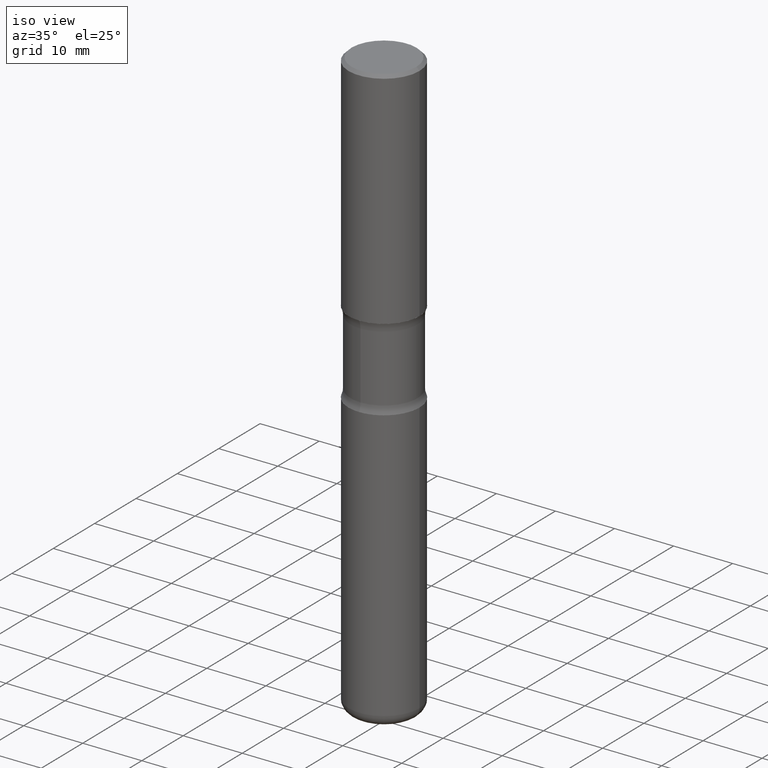
[diagram: clean part render]
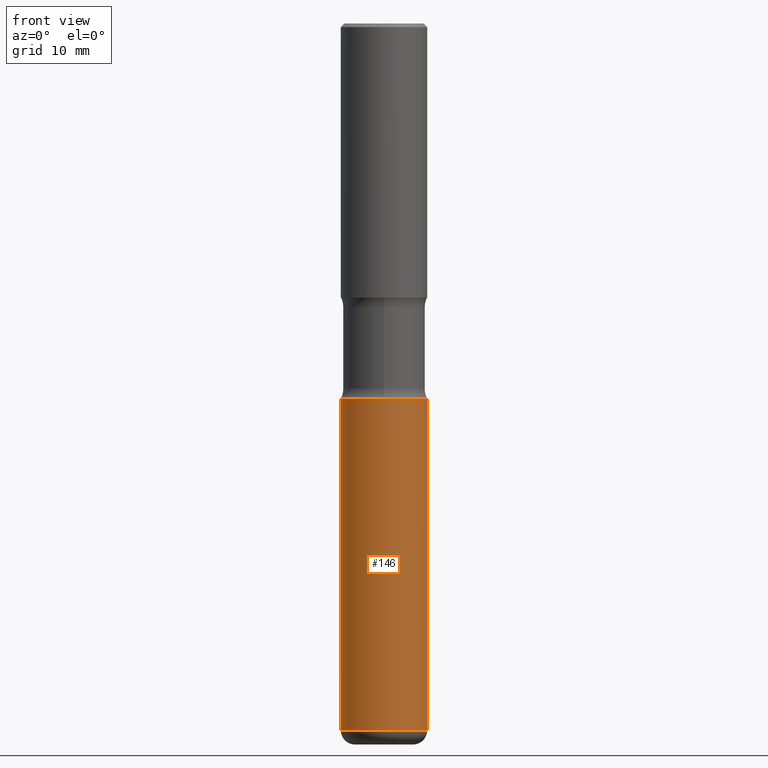
[diagram: tour spotlight — one face highlighted and labeled with its STEP entity id]
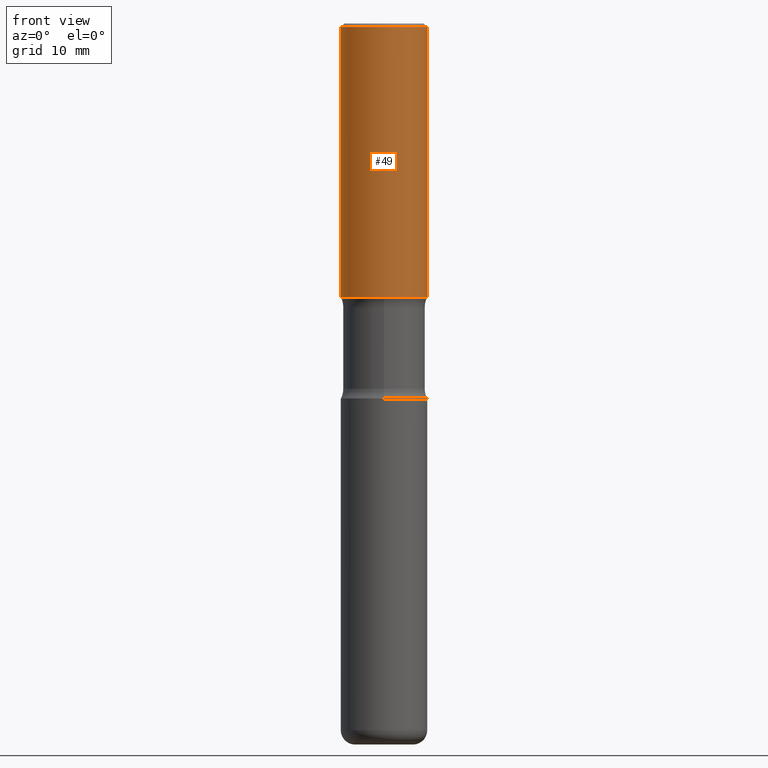
[diagram: tour spotlight — one face highlighted and labeled with its STEP entity id]
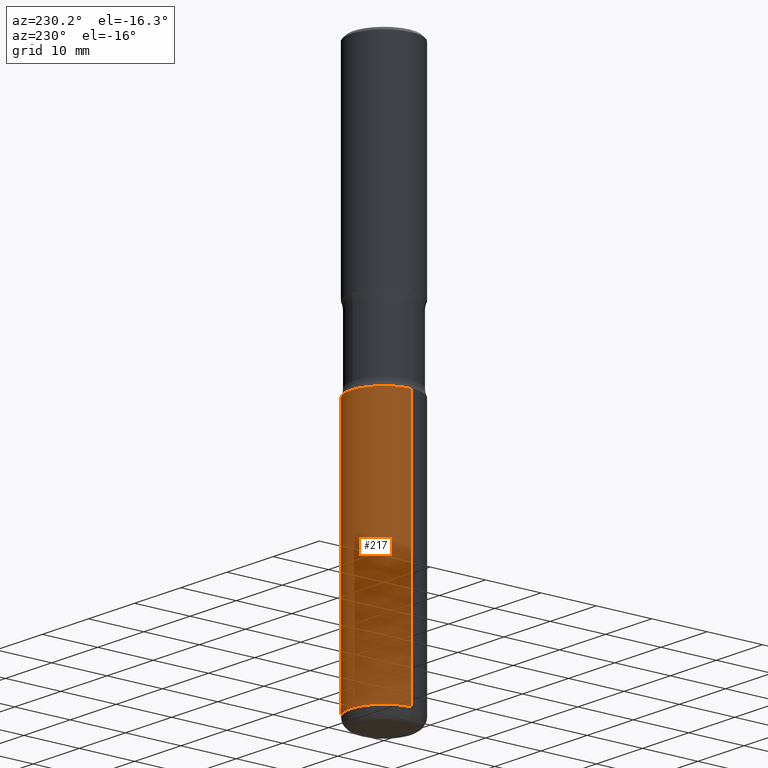
[diagram: tour spotlight — one face highlighted and labeled with its STEP entity id]
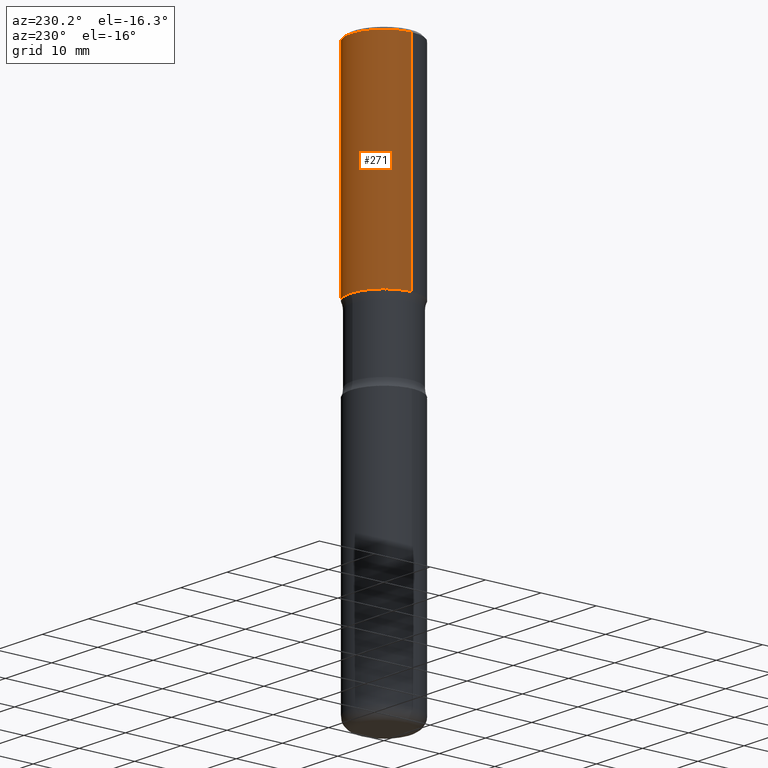
[diagram: tour spotlight — one face highlighted and labeled with its STEP entity id]
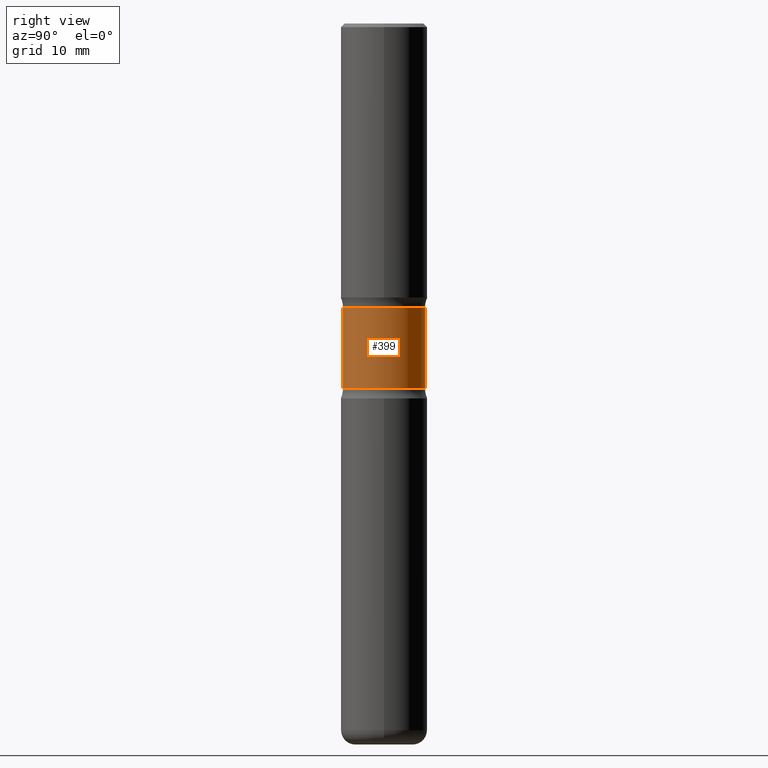
[diagram: tour spotlight — one face highlighted and labeled with its STEP entity id]
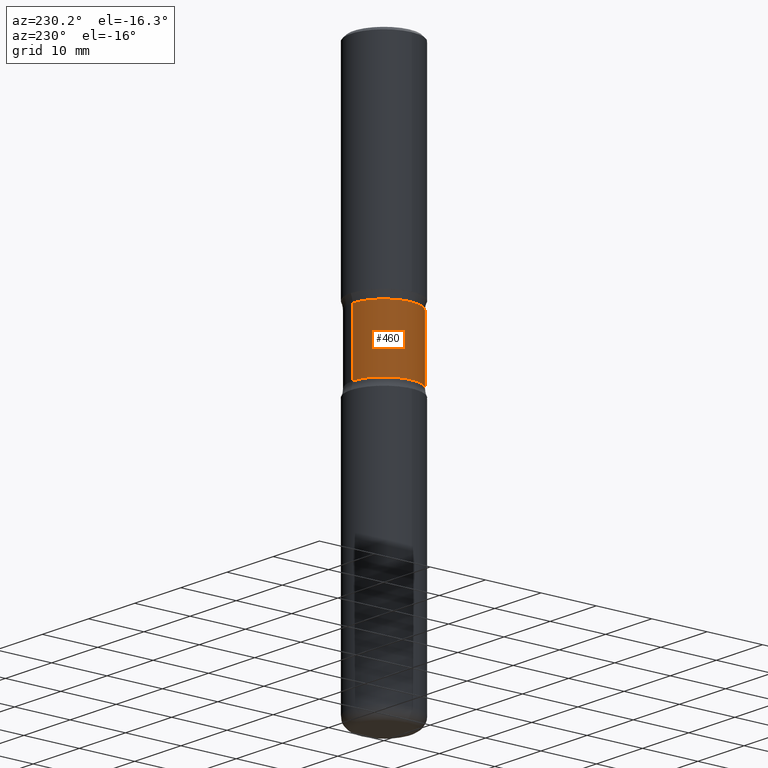
[diagram: tour spotlight — one face highlighted and labeled with its STEP entity id]
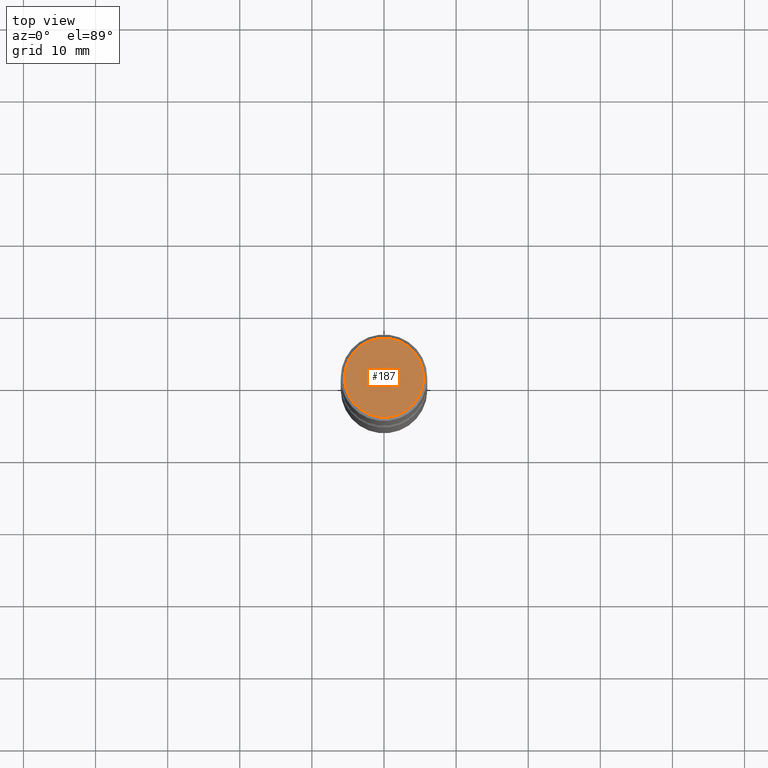
[diagram: tour spotlight — one face highlighted and labeled with its STEP entity id]
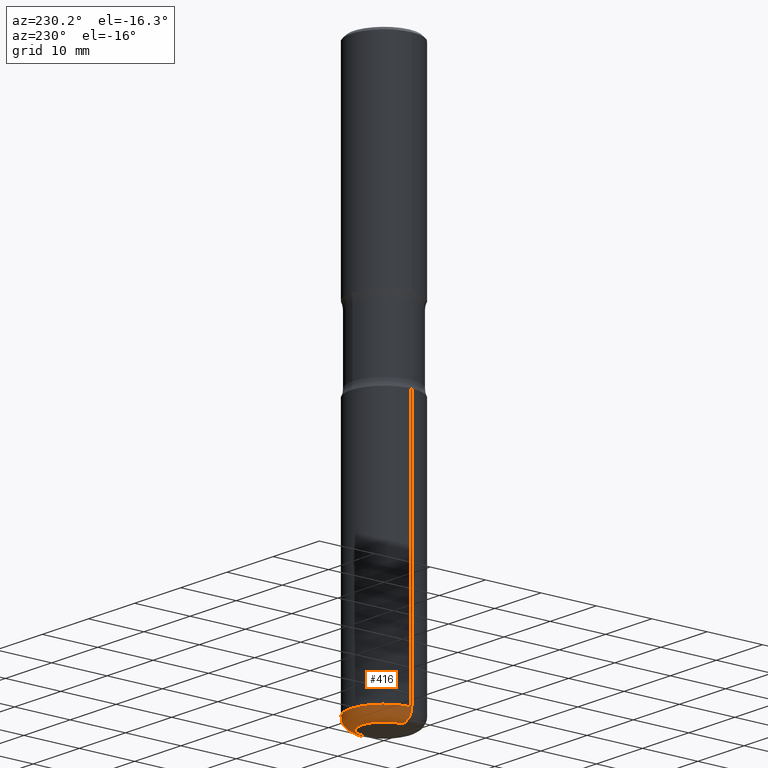
[diagram: tour spotlight — one face highlighted and labeled with its STEP entity id]
A machine part: a face-by-face anatomy tour. The part has 20 B-rep faces; the first image is the clean iso view, then the 8 largest visible faces are spotlighted one at a time (largest first), each with its STEP entity span.

Face 1 — front view, entity #146. In plain terms, the highlighted cylindrical surface (partial cylindrical patch) has radius 5.9995 mm, axis along (-0, 0, 1).
Definition (entity closure, byte-faithful):
#27 = ORIENTED_EDGE ( 'NONE', *, *, #535, .T. ) ;
#38 = CARTESIAN_POINT ( 'NONE',  ( 0.2361999999999999378, -1.512055823412800660E-14, -3.858300000000000729 ) ) ;
#39 = LINE ( 'NONE', #375, #124 ) ;
#40 = AXIS2_PLACEMENT_3D ( 'NONE', #239, #117, #532 ) ;
#42 = CARTESIAN_POINT ( 'NONE',  ( 0.2362000000000002153, -8.797136381349187883E-15, -2.047200000000000575 ) ) ;
#43 = DIRECTION ( 'NONE',  ( -2.445468806185136597E-29, 3.491481338843145583E-15, 1.000000000000000000 ) ) ;
#54 = ORIENTED_EDGE ( 'NONE', *, *, #137, .T. ) ;
#67 = VERTEX_POINT ( 'NONE', #419 ) ;
#74 = CARTESIAN_POINT ( 'NONE',  ( 5.006363740022213922E-29, -7.147760596879691357E-15, -2.047200000000000575 ) ) ;
#117 = DIRECTION ( 'NONE',  ( -2.445468806185136597E-29, 3.491481338843145583E-15, 1.000000000000000000 ) ) ;
#119 = DIRECTION ( 'NONE',  ( -2.445468806185136877E-29, 3.491481338843145188E-15, 1.000000000000000000 ) ) ;
#124 = VECTOR ( 'NONE', #119, 39.37007874015748143 ) ;
#137 = EDGE_CURVE ( 'NONE', #193, #234, #39, .T. ) ;
#142 = VECTOR ( 'NONE', #383, 39.37007874015748143 ) ;
#146 = ADVANCED_FACE ( 'NONE', ( #552 ), #505, .T. ) ;
#159 = VERTEX_POINT ( 'NONE', #418 ) ;
#167 = EDGE_CURVE ( 'NONE', #159, #234, #349, .T. ) ;
#193 = VERTEX_POINT ( 'NONE', #38 ) ;
#216 = DIRECTION ( 'NONE',  ( 1.000000000000000000, -6.982962677686266711E-15, 0.000000000000000000 ) ) ;
#234 = VERTEX_POINT ( 'NONE', #42 ) ;
#239 = CARTESIAN_POINT ( 'NONE',  ( 9.435352294904113263E-29, -1.347118244965851008E-14, -3.858300000000000729 ) ) ;
#257 = DIRECTION ( 'NONE',  ( -2.445468806185136597E-29, 3.491481338843145583E-15, 1.000000000000000000 ) ) ;
#281 = ORIENTED_EDGE ( 'NONE', *, *, #167, .F. ) ;
#302 = AXIS2_PLACEMENT_3D ( 'NONE', #74, #43, #216 ) ;
#349 = CIRCLE ( 'NONE', #302, 0.2362000000000002153 ) ;
#375 = CARTESIAN_POINT ( 'NONE',  ( 0.2362000000000001321, -1.649375784469497117E-15, 1.151752954443000789E-29 ) ) ;
#380 = EDGE_CURVE ( 'NONE', #67, #159, #429, .T. ) ;
#383 = DIRECTION ( 'NONE',  ( -2.445468806185136877E-29, 3.491481338843145188E-15, 1.000000000000000000 ) ) ;
#389 = CIRCLE ( 'NONE', #40, 0.2362000000000000210 ) ;
#414 = DIRECTION ( 'NONE',  ( 1.000000000000000000, -6.982962677686266711E-15, 4.876176775795936353E-29 ) ) ;
#418 = CARTESIAN_POINT ( 'NONE',  ( -0.2362000000000002153, -8.631169581403742744E-15, -2.047200000000000575 ) ) ;
#419 = CARTESIAN_POINT ( 'NONE',  ( -0.2361999999999999378, -1.179288050779315526E-14, -3.858300000000000729 ) ) ;
#424 = AXIS2_PLACEMENT_3D ( 'NONE', #465, #257, #414 ) ;
#425 = ORIENTED_EDGE ( 'NONE', *, *, #380, .F. ) ;
#429 = LINE ( 'NONE', #437, #142 ) ;
#437 = CARTESIAN_POINT ( 'NONE',  ( -0.2362000000000001321, 1.678301941865357577E-15, -1.161852468318209457E-29 ) ) ;
#449 = EDGE_LOOP ( 'NONE', ( #425, #27, #54, #281 ) ) ;
#465 = CARTESIAN_POINT ( 'NONE',  ( 0.000000000000000000, 0.000000000000000000, 0.000000000000000000 ) ) ;
#505 = CYLINDRICAL_SURFACE ( 'NONE', #424, 0.2362000000000001321 ) ;
#532 = DIRECTION ( 'NONE',  ( 1.000000000000000000, -6.982962677686264344E-15, 0.000000000000000000 ) ) ;
#535 = EDGE_CURVE ( 'NONE', #67, #193, #389, .T. ) ;
#552 = FACE_OUTER_BOUND ( 'NONE', #449, .T. ) ;

Face 2 — front view, entity #49. In plain terms, the highlighted cylindrical surface (partial cylindrical patch) has radius 5.9995 mm, axis along (-0, 0, 1).
Definition (entity closure, byte-faithful):
#5 = CARTESIAN_POINT ( 'NONE',  ( -0.2362000000000004374, -9.684154870446855490E-16, -1.496100000000000430 ) ) ;
#15 = ORIENTED_EDGE ( 'NONE', *, *, #469, .F. ) ;
#44 = EDGE_CURVE ( 'NONE', #313, #430, #231, .T. ) ;
#49 = ADVANCED_FACE ( 'NONE', ( #371 ), #210, .T. ) ;
#65 = CARTESIAN_POINT ( 'NONE',  ( 4.890937612370289799E-31, -6.982962677686315028E-17, -0.02000000000000006981 ) ) ;
#66 = CARTESIAN_POINT ( 'NONE',  ( 0.2362000000000000210, -1.690279253850499166E-15, -0.02000000000000006981 ) ) ;
#87 = DIRECTION ( 'NONE',  ( 1.000000000000000000, -6.982962677686266711E-15, 4.876176775795935793E-29 ) ) ;
#91 = CARTESIAN_POINT ( 'NONE',  ( 0.2362000000000002431, -1.649375784469497906E-15, 1.151752954443001209E-29 ) ) ;
#103 = ORIENTED_EDGE ( 'NONE', *, *, #44, .T. ) ;
#116 = DIRECTION ( 'NONE',  ( -2.445468806185136877E-29, 3.491481338843145188E-15, 1.000000000000000000 ) ) ;
#133 = LINE ( 'NONE', #91, #388 ) ;
#150 = AXIS2_PLACEMENT_3D ( 'NONE', #65, #241, #403 ) ;
#155 = EDGE_CURVE ( 'NONE', #430, #180, #133, .T. ) ;
#180 = VERTEX_POINT ( 'NONE', #66 ) ;
#188 = VERTEX_POINT ( 'NONE', #258 ) ;
#208 = DIRECTION ( 'NONE',  ( 1.000000000000000000, -6.982962677686267499E-15, 0.000000000000000000 ) ) ;
#210 = CYLINDRICAL_SURFACE ( 'NONE', #537, 0.2362000000000002431 ) ;
#231 = CIRCLE ( 'NONE', #401, 0.2362000000000004374 ) ;
#241 = DIRECTION ( 'NONE',  ( -2.445468806185136597E-29, 3.491481338843145583E-15, 1.000000000000000000 ) ) ;
#258 = CARTESIAN_POINT ( 'NONE',  ( -0.2362000000000000210, 1.579546157692633424E-15, -0.02000000000000006981 ) ) ;
#272 = EDGE_CURVE ( 'NONE', #188, #180, #320, .T. ) ;
#274 = EDGE_LOOP ( 'NONE', ( #15, #103, #363, #517 ) ) ;
#296 = DIRECTION ( 'NONE',  ( -2.445468806185136877E-29, 3.491481338843145188E-15, 1.000000000000000000 ) ) ;
#313 = VERTEX_POINT ( 'NONE', #5 ) ;
#320 = CIRCLE ( 'NONE', #150, 0.2362000000000000210 ) ;
#330 = CARTESIAN_POINT ( 'NONE',  ( -0.2362000000000002431, 1.678301941865358366E-15, -1.161852468318209878E-29 ) ) ;
#331 = DIRECTION ( 'NONE',  ( -2.445468806185136597E-29, 3.491481338843145583E-15, 1.000000000000000000 ) ) ;
#335 = DIRECTION ( 'NONE',  ( -2.445468806185136597E-29, 3.491481338843145583E-15, 1.000000000000000000 ) ) ;
#338 = CARTESIAN_POINT ( 'NONE',  ( 3.658665880933583510E-29, -5.223605231043231238E-15, -1.496100000000000430 ) ) ;
#363 = ORIENTED_EDGE ( 'NONE', *, *, #155, .T. ) ;
#371 = FACE_OUTER_BOUND ( 'NONE', #274, .T. ) ;
#388 = VECTOR ( 'NONE', #296, 39.37007874015748143 ) ;
#398 = CARTESIAN_POINT ( 'NONE',  ( 0.2362000000000004374, -6.872981015512730918E-15, -1.496100000000000430 ) ) ;
#401 = AXIS2_PLACEMENT_3D ( 'NONE', #338, #331, #208 ) ;
#403 = DIRECTION ( 'NONE',  ( 1.000000000000000000, -6.982962677686267499E-15, 0.000000000000000000 ) ) ;
#430 = VERTEX_POINT ( 'NONE', #398 ) ;
#448 = LINE ( 'NONE', #330, #487 ) ;
#466 = CARTESIAN_POINT ( 'NONE',  ( 0.000000000000000000, 0.000000000000000000, 0.000000000000000000 ) ) ;
#469 = EDGE_CURVE ( 'NONE', #313, #188, #448, .T. ) ;
#487 = VECTOR ( 'NONE', #116, 39.37007874015748143 ) ;
#517 = ORIENTED_EDGE ( 'NONE', *, *, #272, .F. ) ;
#537 = AXIS2_PLACEMENT_3D ( 'NONE', #466, #335, #87 ) ;

Face 3 — auxiliary view, entity #217. In plain terms, the highlighted cylindrical surface (partial cylindrical patch) has radius 5.9995 mm, axis along (-0, 0, 1).
Definition (entity closure, byte-faithful):
#35 = ORIENTED_EDGE ( 'NONE', *, *, #380, .T. ) ;
#38 = CARTESIAN_POINT ( 'NONE',  ( 0.2361999999999999378, -1.512055823412800660E-14, -3.858300000000000729 ) ) ;
#39 = LINE ( 'NONE', #375, #124 ) ;
#42 = CARTESIAN_POINT ( 'NONE',  ( 0.2362000000000002153, -8.797136381349187883E-15, -2.047200000000000575 ) ) ;
#67 = VERTEX_POINT ( 'NONE', #419 ) ;
#68 = CARTESIAN_POINT ( 'NONE',  ( 9.435352294904113263E-29, -1.347118244965851008E-14, -3.858300000000000729 ) ) ;
#90 = EDGE_LOOP ( 'NONE', ( #479, #35, #559, #423 ) ) ;
#119 = DIRECTION ( 'NONE',  ( -2.445468806185136877E-29, 3.491481338843145188E-15, 1.000000000000000000 ) ) ;
#124 = VECTOR ( 'NONE', #119, 39.37007874015748143 ) ;
#137 = EDGE_CURVE ( 'NONE', #193, #234, #39, .T. ) ;
#142 = VECTOR ( 'NONE', #383, 39.37007874015748143 ) ;
#159 = VERTEX_POINT ( 'NONE', #418 ) ;
#168 = DIRECTION ( 'NONE',  ( 1.000000000000000000, -6.982962677686266711E-15, 4.876176775795936353E-29 ) ) ;
#193 = VERTEX_POINT ( 'NONE', #38 ) ;
#206 = CARTESIAN_POINT ( 'NONE',  ( 5.006363740022213922E-29, -7.147760596879691357E-15, -2.047200000000000575 ) ) ;
#207 = CARTESIAN_POINT ( 'NONE',  ( 0.000000000000000000, 0.000000000000000000, 0.000000000000000000 ) ) ;
#217 = ADVANCED_FACE ( 'NONE', ( #464 ), #540, .T. ) ;
#234 = VERTEX_POINT ( 'NONE', #42 ) ;
#242 = CIRCLE ( 'NONE', #321, 0.2362000000000000210 ) ;
#251 = DIRECTION ( 'NONE',  ( 1.000000000000000000, -6.982962677686264344E-15, 0.000000000000000000 ) ) ;
#321 = AXIS2_PLACEMENT_3D ( 'NONE', #68, #409, #251 ) ;
#342 = AXIS2_PLACEMENT_3D ( 'NONE', #207, #543, #168 ) ;
#375 = CARTESIAN_POINT ( 'NONE',  ( 0.2362000000000001321, -1.649375784469497117E-15, 1.151752954443000789E-29 ) ) ;
#380 = EDGE_CURVE ( 'NONE', #67, #159, #429, .T. ) ;
#383 = DIRECTION ( 'NONE',  ( -2.445468806185136877E-29, 3.491481338843145188E-15, 1.000000000000000000 ) ) ;
#400 = DIRECTION ( 'NONE',  ( 1.000000000000000000, -6.982962677686266711E-15, 0.000000000000000000 ) ) ;
#409 = DIRECTION ( 'NONE',  ( -2.445468806185136597E-29, 3.491481338843145583E-15, 1.000000000000000000 ) ) ;
#418 = CARTESIAN_POINT ( 'NONE',  ( -0.2362000000000002153, -8.631169581403742744E-15, -2.047200000000000575 ) ) ;
#419 = CARTESIAN_POINT ( 'NONE',  ( -0.2361999999999999378, -1.179288050779315526E-14, -3.858300000000000729 ) ) ;
#423 = ORIENTED_EDGE ( 'NONE', *, *, #137, .F. ) ;
#426 = AXIS2_PLACEMENT_3D ( 'NONE', #206, #541, #400 ) ;
#429 = LINE ( 'NONE', #437, #142 ) ;
#437 = CARTESIAN_POINT ( 'NONE',  ( -0.2362000000000001321, 1.678301941865357577E-15, -1.161852468318209457E-29 ) ) ;
#464 = FACE_OUTER_BOUND ( 'NONE', #90, .T. ) ;
#479 = ORIENTED_EDGE ( 'NONE', *, *, #506, .T. ) ;
#506 = EDGE_CURVE ( 'NONE', #193, #67, #242, .T. ) ;
#527 = CIRCLE ( 'NONE', #426, 0.2362000000000002153 ) ;
#540 = CYLINDRICAL_SURFACE ( 'NONE', #342, 0.2362000000000001321 ) ;
#541 = DIRECTION ( 'NONE',  ( -2.445468806185136597E-29, 3.491481338843145583E-15, 1.000000000000000000 ) ) ;
#542 = EDGE_CURVE ( 'NONE', #234, #159, #527, .T. ) ;
#543 = DIRECTION ( 'NONE',  ( -2.445468806185136597E-29, 3.491481338843145583E-15, 1.000000000000000000 ) ) ;
#559 = ORIENTED_EDGE ( 'NONE', *, *, #542, .F. ) ;

Face 4 — auxiliary view, entity #271. In plain terms, the highlighted cylindrical surface (partial cylindrical patch) has radius 5.9995 mm, axis along (-0, 0, 1).
Definition (entity closure, byte-faithful):
#1 = ORIENTED_EDGE ( 'NONE', *, *, #469, .T. ) ;
#5 = CARTESIAN_POINT ( 'NONE',  ( -0.2362000000000004374, -9.684154870446855490E-16, -1.496100000000000430 ) ) ;
#25 = DIRECTION ( 'NONE',  ( -2.445468806185136597E-29, 3.491481338843145583E-15, 1.000000000000000000 ) ) ;
#26 = CARTESIAN_POINT ( 'NONE',  ( 0.000000000000000000, 0.000000000000000000, 0.000000000000000000 ) ) ;
#63 = FACE_OUTER_BOUND ( 'NONE', #139, .T. ) ;
#66 = CARTESIAN_POINT ( 'NONE',  ( 0.2362000000000000210, -1.690279253850499166E-15, -0.02000000000000006981 ) ) ;
#77 = AXIS2_PLACEMENT_3D ( 'NONE', #26, #153, #158 ) ;
#91 = CARTESIAN_POINT ( 'NONE',  ( 0.2362000000000002431, -1.649375784469497906E-15, 1.151752954443001209E-29 ) ) ;
#116 = DIRECTION ( 'NONE',  ( -2.445468806185136877E-29, 3.491481338843145188E-15, 1.000000000000000000 ) ) ;
#133 = LINE ( 'NONE', #91, #388 ) ;
#139 = EDGE_LOOP ( 'NONE', ( #318, #1, #214, #309 ) ) ;
#153 = DIRECTION ( 'NONE',  ( -2.445468806185136597E-29, 3.491481338843145583E-15, 1.000000000000000000 ) ) ;
#155 = EDGE_CURVE ( 'NONE', #430, #180, #133, .T. ) ;
#158 = DIRECTION ( 'NONE',  ( 1.000000000000000000, -6.982962677686266711E-15, 4.876176775795935793E-29 ) ) ;
#180 = VERTEX_POINT ( 'NONE', #66 ) ;
#188 = VERTEX_POINT ( 'NONE', #258 ) ;
#214 = ORIENTED_EDGE ( 'NONE', *, *, #534, .F. ) ;
#222 = AXIS2_PLACEMENT_3D ( 'NONE', #404, #497, #364 ) ;
#250 = CIRCLE ( 'NONE', #290, 0.2362000000000004374 ) ;
#258 = CARTESIAN_POINT ( 'NONE',  ( -0.2362000000000000210, 1.579546157692633424E-15, -0.02000000000000006981 ) ) ;
#271 = ADVANCED_FACE ( 'NONE', ( #63 ), #359, .T. ) ;
#290 = AXIS2_PLACEMENT_3D ( 'NONE', #536, #25, #452 ) ;
#296 = DIRECTION ( 'NONE',  ( -2.445468806185136877E-29, 3.491481338843145188E-15, 1.000000000000000000 ) ) ;
#309 = ORIENTED_EDGE ( 'NONE', *, *, #155, .F. ) ;
#313 = VERTEX_POINT ( 'NONE', #5 ) ;
#318 = ORIENTED_EDGE ( 'NONE', *, *, #496, .T. ) ;
#330 = CARTESIAN_POINT ( 'NONE',  ( -0.2362000000000002431, 1.678301941865358366E-15, -1.161852468318209878E-29 ) ) ;
#359 = CYLINDRICAL_SURFACE ( 'NONE', #77, 0.2362000000000002431 ) ;
#364 = DIRECTION ( 'NONE',  ( 1.000000000000000000, -6.982962677686267499E-15, 0.000000000000000000 ) ) ;
#388 = VECTOR ( 'NONE', #296, 39.37007874015748143 ) ;
#398 = CARTESIAN_POINT ( 'NONE',  ( 0.2362000000000004374, -6.872981015512730918E-15, -1.496100000000000430 ) ) ;
#404 = CARTESIAN_POINT ( 'NONE',  ( 4.890937612370289799E-31, -6.982962677686315028E-17, -0.02000000000000006981 ) ) ;
#430 = VERTEX_POINT ( 'NONE', #398 ) ;
#448 = LINE ( 'NONE', #330, #487 ) ;
#452 = DIRECTION ( 'NONE',  ( 1.000000000000000000, -6.982962677686267499E-15, 0.000000000000000000 ) ) ;
#469 = EDGE_CURVE ( 'NONE', #313, #188, #448, .T. ) ;
#487 = VECTOR ( 'NONE', #116, 39.37007874015748143 ) ;
#496 = EDGE_CURVE ( 'NONE', #430, #313, #250, .T. ) ;
#497 = DIRECTION ( 'NONE',  ( -2.445468806185136597E-29, 3.491481338843145583E-15, 1.000000000000000000 ) ) ;
#534 = EDGE_CURVE ( 'NONE', #180, #188, #548, .T. ) ;
#536 = CARTESIAN_POINT ( 'NONE',  ( 3.658665880933583510E-29, -5.223605231043231238E-15, -1.496100000000000430 ) ) ;
#548 = CIRCLE ( 'NONE', #222, 0.2362000000000000210 ) ;

Face 5 — right view, entity #399. In plain terms, the highlighted cylindrical surface (partial cylindrical patch) has radius 5.6896 mm, axis along (0, -0, -1).
Definition (entity closure, byte-faithful):
#9 = EDGE_LOOP ( 'NONE', ( #113, #551, #143, #58 ) ) ;
#16 = CARTESIAN_POINT ( 'NONE',  ( 9.687424416766102159E-29, -1.366059178122345804E-14, -3.937000000000000721 ) ) ;
#32 = LINE ( 'NONE', #417, #435 ) ;
#50 = DIRECTION ( 'NONE',  ( 6.982962677686265922E-15, 1.000000000000000000, -3.658724991514637697E-15 ) ) ;
#58 = ORIENTED_EDGE ( 'NONE', *, *, #254, .F. ) ;
#64 = CARTESIAN_POINT ( 'NONE',  ( 1.564183639801761664E-15, 0.2239999999999945923, -1.549962417324143304 ) ) ;
#80 = CARTESIAN_POINT ( 'NONE',  ( 1.564183639801820828E-15, 0.2239999999999864044, -3.937000000000001165 ) ) ;
#88 = EDGE_CURVE ( 'NONE', #557, #156, #445, .T. ) ;
#113 = ORIENTED_EDGE ( 'NONE', *, *, #369, .T. ) ;
#143 = ORIENTED_EDGE ( 'NONE', *, *, #88, .F. ) ;
#148 = FACE_OUTER_BOUND ( 'NONE', #9, .T. ) ;
#156 = VERTEX_POINT ( 'NONE', #264 ) ;
#157 = DIRECTION ( 'NONE',  ( 2.477013798679166358E-29, -3.446307114162222532E-15, -1.000000000000000000 ) ) ;
#165 = AXIS2_PLACEMENT_3D ( 'NONE', #533, #157, #396 ) ;
#174 = VECTOR ( 'NONE', #196, 39.37007874015748143 ) ;
#196 = DIRECTION ( 'NONE',  ( 2.477013798679166639E-29, -3.446307114162222138E-15, -1.000000000000000000 ) ) ;
#197 = CIRCLE ( 'NONE', #298, 0.2240000000000000324 ) ;
#209 = EDGE_CURVE ( 'NONE', #351, #156, #32, .T. ) ;
#225 = CYLINDRICAL_SURFACE ( 'NONE', #494, 0.2240000000000000602 ) ;
#248 = CARTESIAN_POINT ( 'NONE',  ( 1.564183639801773102E-15, 0.2239999999999931213, -1.993337582675859698 ) ) ;
#254 = EDGE_CURVE ( 'NONE', #501, #557, #454, .T. ) ;
#264 = CARTESIAN_POINT ( 'NONE',  ( -1.578600589287180697E-15, -0.2240000000000070546, -1.993337582675858144 ) ) ;
#298 = AXIS2_PLACEMENT_3D ( 'NONE', #440, #346, #50 ) ;
#346 = DIRECTION ( 'NONE',  ( 2.477013798679166358E-29, -3.446307114162222532E-15, -1.000000000000000000 ) ) ;
#351 = VERTEX_POINT ( 'NONE', #356 ) ;
#356 = CARTESIAN_POINT ( 'NONE',  ( -1.578600589287193318E-15, -0.2240000000000054448, -1.549962417324141750 ) ) ;
#369 = EDGE_CURVE ( 'NONE', #501, #351, #197, .T. ) ;
#395 = DIRECTION ( 'NONE',  ( 6.982962677686265922E-15, 1.000000000000000000, -2.439149994343091666E-15 ) ) ;
#396 = DIRECTION ( 'NONE',  ( 6.982962677686265922E-15, 1.000000000000000000, -3.658724991514636908E-15 ) ) ;
#399 = ADVANCED_FACE ( 'NONE', ( #148 ), #225, .T. ) ;
#417 = CARTESIAN_POINT ( 'NONE',  ( -1.536751551500726315E-15, -0.2240000000000137159, -3.937000000000000277 ) ) ;
#435 = VECTOR ( 'NONE', #546, 39.37007874015748143 ) ;
#440 = CARTESIAN_POINT ( 'NONE',  ( 3.774699386512239440E-29, -5.434127178275053399E-15, -1.549962417324142638 ) ) ;
#445 = CIRCLE ( 'NONE', #165, 0.2240000000000000879 ) ;
#454 = LINE ( 'NONE', #80, #174 ) ;
#494 = AXIS2_PLACEMENT_3D ( 'NONE', #16, #514, #395 ) ;
#501 = VERTEX_POINT ( 'NONE', #64 ) ;
#514 = DIRECTION ( 'NONE',  ( 2.477013798679166358E-29, -3.446307114162222532E-15, -1.000000000000000000 ) ) ;
#533 = CARTESIAN_POINT ( 'NONE',  ( 4.872945789080098488E-29, -6.962134164869526576E-15, -1.993337582675859032 ) ) ;
#546 = DIRECTION ( 'NONE',  ( 2.477013798679166639E-29, -3.446307114162222138E-15, -1.000000000000000000 ) ) ;
#551 = ORIENTED_EDGE ( 'NONE', *, *, #209, .T. ) ;
#557 = VERTEX_POINT ( 'NONE', #248 ) ;

Face 6 — auxiliary view, entity #460. In plain terms, the highlighted cylindrical surface (partial cylindrical patch) has radius 5.6896 mm, axis along (0, -0, -1).
Definition (entity closure, byte-faithful):
#4 = ORIENTED_EDGE ( 'NONE', *, *, #254, .T. ) ;
#23 = EDGE_CURVE ( 'NONE', #351, #501, #97, .T. ) ;
#29 = AXIS2_PLACEMENT_3D ( 'NONE', #459, #253, #341 ) ;
#32 = LINE ( 'NONE', #417, #435 ) ;
#64 = CARTESIAN_POINT ( 'NONE',  ( 1.564183639801761664E-15, 0.2239999999999945923, -1.549962417324143304 ) ) ;
#73 = EDGE_CURVE ( 'NONE', #156, #557, #184, .T. ) ;
#80 = CARTESIAN_POINT ( 'NONE',  ( 1.564183639801820828E-15, 0.2239999999999864044, -3.937000000000001165 ) ) ;
#97 = CIRCLE ( 'NONE', #29, 0.2240000000000000324 ) ;
#105 = ORIENTED_EDGE ( 'NONE', *, *, #209, .F. ) ;
#138 = ORIENTED_EDGE ( 'NONE', *, *, #73, .F. ) ;
#141 = AXIS2_PLACEMENT_3D ( 'NONE', #279, #201, #232 ) ;
#156 = VERTEX_POINT ( 'NONE', #264 ) ;
#174 = VECTOR ( 'NONE', #196, 39.37007874015748143 ) ;
#183 = FACE_OUTER_BOUND ( 'NONE', #434, .T. ) ;
#184 = CIRCLE ( 'NONE', #141, 0.2240000000000000879 ) ;
#196 = DIRECTION ( 'NONE',  ( 2.477013798679166639E-29, -3.446307114162222138E-15, -1.000000000000000000 ) ) ;
#201 = DIRECTION ( 'NONE',  ( 2.477013798679166358E-29, -3.446307114162222532E-15, -1.000000000000000000 ) ) ;
#209 = EDGE_CURVE ( 'NONE', #351, #156, #32, .T. ) ;
#232 = DIRECTION ( 'NONE',  ( 6.982962677686265922E-15, 1.000000000000000000, -3.658724991514636908E-15 ) ) ;
#248 = CARTESIAN_POINT ( 'NONE',  ( 1.564183639801773102E-15, 0.2239999999999931213, -1.993337582675859698 ) ) ;
#253 = DIRECTION ( 'NONE',  ( 2.477013798679166358E-29, -3.446307114162222532E-15, -1.000000000000000000 ) ) ;
#254 = EDGE_CURVE ( 'NONE', #501, #557, #454, .T. ) ;
#261 = AXIS2_PLACEMENT_3D ( 'NONE', #350, #482, #390 ) ;
#264 = CARTESIAN_POINT ( 'NONE',  ( -1.578600589287180697E-15, -0.2240000000000070546, -1.993337582675858144 ) ) ;
#279 = CARTESIAN_POINT ( 'NONE',  ( 4.872945789080098488E-29, -6.962134164869526576E-15, -1.993337582675859032 ) ) ;
#319 = CYLINDRICAL_SURFACE ( 'NONE', #261, 0.2240000000000000602 ) ;
#341 = DIRECTION ( 'NONE',  ( 6.982962677686265922E-15, 1.000000000000000000, -3.658724991514637697E-15 ) ) ;
#348 = ORIENTED_EDGE ( 'NONE', *, *, #23, .T. ) ;
#350 = CARTESIAN_POINT ( 'NONE',  ( 9.687424416766102159E-29, -1.366059178122345804E-14, -3.937000000000000721 ) ) ;
#351 = VERTEX_POINT ( 'NONE', #356 ) ;
#356 = CARTESIAN_POINT ( 'NONE',  ( -1.578600589287193318E-15, -0.2240000000000054448, -1.549962417324141750 ) ) ;
#390 = DIRECTION ( 'NONE',  ( 6.982962677686265922E-15, 1.000000000000000000, -2.439149994343091666E-15 ) ) ;
#417 = CARTESIAN_POINT ( 'NONE',  ( -1.536751551500726315E-15, -0.2240000000000137159, -3.937000000000000277 ) ) ;
#434 = EDGE_LOOP ( 'NONE', ( #105, #348, #4, #138 ) ) ;
#435 = VECTOR ( 'NONE', #546, 39.37007874015748143 ) ;
#454 = LINE ( 'NONE', #80, #174 ) ;
#459 = CARTESIAN_POINT ( 'NONE',  ( 3.774699386512239440E-29, -5.434127178275053399E-15, -1.549962417324142638 ) ) ;
#460 = ADVANCED_FACE ( 'NONE', ( #183 ), #319, .T. ) ;
#482 = DIRECTION ( 'NONE',  ( 2.477013798679166358E-29, -3.446307114162222532E-15, -1.000000000000000000 ) ) ;
#501 = VERTEX_POINT ( 'NONE', #64 ) ;
#546 = DIRECTION ( 'NONE',  ( 2.477013798679166639E-29, -3.446307114162222138E-15, -1.000000000000000000 ) ) ;
#557 = VERTEX_POINT ( 'NONE', #248 ) ;

Face 7 — top view, entity #187. In plain terms, the highlighted planar face has unit normal (0, -0, -1).
Definition (entity closure, byte-faithful):
#79 = PLANE ( 'NONE',  #134 ) ;
#110 = VERTEX_POINT ( 'NONE', #392 ) ;
#134 = AXIS2_PLACEMENT_3D ( 'NONE', #176, #256, #470 ) ;
#161 = CARTESIAN_POINT ( 'NONE',  ( 5.219257071676098903E-46, -7.451715851902235727E-32, -2.134256245050205639E-17 ) ) ;
#173 = EDGE_CURVE ( 'NONE', #110, #337, #365, .T. ) ;
#176 = CARTESIAN_POINT ( 'NONE',  ( 1.509716530915770718E-15, 0.2162000000000000033, -7.655295466831390880E-16 ) ) ;
#187 = ADVANCED_FACE ( 'NONE', ( #358 ), #79, .F. ) ;
#195 = AXIS2_PLACEMENT_3D ( 'NONE', #554, #347, #529 ) ;
#256 = DIRECTION ( 'NONE',  ( 2.438088387897960049E-29, -3.491481338843145188E-15, -1.000000000000000000 ) ) ;
#263 = EDGE_LOOP ( 'NONE', ( #531, #270 ) ) ;
#270 = ORIENTED_EDGE ( 'NONE', *, *, #173, .T. ) ;
#273 = CARTESIAN_POINT ( 'NONE',  ( -0.2162000000000000033, 1.544631344304202170E-15, -2.134256245051273683E-17 ) ) ;
#293 = DIRECTION ( 'NONE',  ( -2.445468806185136597E-29, 3.491481338843145583E-15, 1.000000000000000000 ) ) ;
#329 = DIRECTION ( 'NONE',  ( 1.000000000000000000, -6.982962677686266711E-15, 4.876655451117825523E-29 ) ) ;
#333 = AXIS2_PLACEMENT_3D ( 'NONE', #161, #293, #329 ) ;
#337 = VERTEX_POINT ( 'NONE', #273 ) ;
#347 = DIRECTION ( 'NONE',  ( -2.445468806185136597E-29, 3.491481338843145583E-15, 1.000000000000000000 ) ) ;
#358 = FACE_OUTER_BOUND ( 'NONE', #263, .T. ) ;
#365 = CIRCLE ( 'NONE', #195, 0.2162000000000000033 ) ;
#392 = CARTESIAN_POINT ( 'NONE',  ( 0.2162000000000000033, -1.586759460484351988E-15, -2.134256245049122805E-17 ) ) ;
#411 = CIRCLE ( 'NONE', #333, 0.2162000000000000033 ) ;
#470 = DIRECTION ( 'NONE',  ( -1.000000000000000000, 6.982962677686265922E-15, -4.876176775795935793E-29 ) ) ;
#491 = EDGE_CURVE ( 'NONE', #337, #110, #411, .T. ) ;
#529 = DIRECTION ( 'NONE',  ( 1.000000000000000000, -6.982962677686266711E-15, 4.876655451117825523E-29 ) ) ;
#531 = ORIENTED_EDGE ( 'NONE', *, *, #491, .T. ) ;
#554 = CARTESIAN_POINT ( 'NONE',  ( 5.219257071676098903E-46, -7.451715851902235727E-32, -2.134256245050205639E-17 ) ) ;

Face 8 — auxiliary view, entity #416. In plain terms, the highlighted toroidal blend (fillet) surface has major radius 4.0005 mm and minor (blend) radius 1.999 mm.
Definition (entity closure, byte-faithful):
#2 = CARTESIAN_POINT ( 'NONE',  ( 9.435352294904113263E-29, -1.347118244965851008E-14, -3.858300000000000729 ) ) ;
#17 = ORIENTED_EDGE ( 'NONE', *, *, #345, .T. ) ;
#18 = CIRCLE ( 'NONE', #357, 0.07869999999999956197 ) ;
#20 = CARTESIAN_POINT ( 'NONE',  ( 0.1575000000000002232, -1.484577865276105326E-14, -3.937000000000000277 ) ) ;
#38 = CARTESIAN_POINT ( 'NONE',  ( 0.2361999999999999378, -1.512055823412800660E-14, -3.858300000000000729 ) ) ;
#46 = ORIENTED_EDGE ( 'NONE', *, *, #506, .F. ) ;
#57 = AXIS2_PLACEMENT_3D ( 'NONE', #427, #104, #189 ) ;
#59 = DIRECTION ( 'NONE',  ( 1.000000000000000000, -6.982962677686265133E-15, 0.000000000000000000 ) ) ;
#62 = FACE_OUTER_BOUND ( 'NONE', #226, .T. ) ;
#67 = VERTEX_POINT ( 'NONE', #419 ) ;
#68 = CARTESIAN_POINT ( 'NONE',  ( 9.435352294904113263E-29, -1.347118244965851008E-14, -3.858300000000000729 ) ) ;
#71 = VERTEX_POINT ( 'NONE', #20 ) ;
#104 = DIRECTION ( 'NONE',  ( -6.982962677686266711E-15, -1.000000000000000000, 3.491481338843145583E-15 ) ) ;
#106 = DIRECTION ( 'NONE',  ( 1.000000000000000000, -6.982962677686270655E-15, 4.883557194083114583E-29 ) ) ;
#144 = DIRECTION ( 'NONE',  ( -2.445468806185136597E-29, 3.491481338843145583E-15, 1.000000000000000000 ) ) ;
#151 = AXIS2_PLACEMENT_3D ( 'NONE', #488, #144, #59 ) ;
#189 = DIRECTION ( 'NONE',  ( 1.000000000000000000, -6.982962677686259611E-15, 0.000000000000000000 ) ) ;
#193 = VERTEX_POINT ( 'NONE', #38 ) ;
#199 = DIRECTION ( 'NONE',  ( 7.105427357601001859E-15, 1.000000000000000000, -3.491481338843145583E-15 ) ) ;
#223 = ORIENTED_EDGE ( 'NONE', *, *, #480, .T. ) ;
#226 = EDGE_LOOP ( 'NONE', ( #17, #223, #46, #408 ) ) ;
#227 = CARTESIAN_POINT ( 'NONE',  ( -0.1575000000000002232, -1.220986886499823132E-14, -3.937000000000000277 ) ) ;
#242 = CIRCLE ( 'NONE', #321, 0.2362000000000000210 ) ;
#251 = DIRECTION ( 'NONE',  ( 1.000000000000000000, -6.982962677686264344E-15, 0.000000000000000000 ) ) ;
#269 = AXIS2_PLACEMENT_3D ( 'NONE', #2, #484, #106 ) ;
#297 = CARTESIAN_POINT ( 'NONE',  ( -0.1575000000000002232, -1.235207764083635089E-14, -3.858300000000000729 ) ) ;
#304 = CIRCLE ( 'NONE', #57, 0.07869999999999956197 ) ;
#321 = AXIS2_PLACEMENT_3D ( 'NONE', #68, #409, #251 ) ;
#345 = EDGE_CURVE ( 'NONE', #71, #397, #477, .T. ) ;
#357 = AXIS2_PLACEMENT_3D ( 'NONE', #297, #199, #441 ) ;
#361 = EDGE_CURVE ( 'NONE', #71, #193, #304, .T. ) ;
#397 = VERTEX_POINT ( 'NONE', #227 ) ;
#408 = ORIENTED_EDGE ( 'NONE', *, *, #361, .F. ) ;
#409 = DIRECTION ( 'NONE',  ( -2.445468806185136597E-29, 3.491481338843145583E-15, 1.000000000000000000 ) ) ;
#416 = ADVANCED_FACE ( 'NONE', ( #62 ), #508, .T. ) ;
#419 = CARTESIAN_POINT ( 'NONE',  ( -0.2361999999999999378, -1.179288050779315526E-14, -3.858300000000000729 ) ) ;
#427 = CARTESIAN_POINT ( 'NONE',  ( 0.1575000000000002232, -1.457099907139409992E-14, -3.858300000000000729 ) ) ;
#441 = DIRECTION ( 'NONE',  ( -1.000000000000000000, 7.105427357601008170E-15, 0.000000000000000000 ) ) ;
#477 = CIRCLE ( 'NONE', #151, 0.1575000000000002232 ) ;
#480 = EDGE_CURVE ( 'NONE', #397, #67, #18, .T. ) ;
#484 = DIRECTION ( 'NONE',  ( -2.445468806185136597E-29, 3.491481338843145583E-15, 1.000000000000000000 ) ) ;
#488 = CARTESIAN_POINT ( 'NONE',  ( 9.627810689950883669E-29, -1.374596203102546341E-14, -3.937000000000000277 ) ) ;
#506 = EDGE_CURVE ( 'NONE', #193, #67, #242, .T. ) ;
#508 = TOROIDAL_SURFACE ( 'NONE', #269, 0.1575000000000002232, 0.07869999999999957585 ) ;